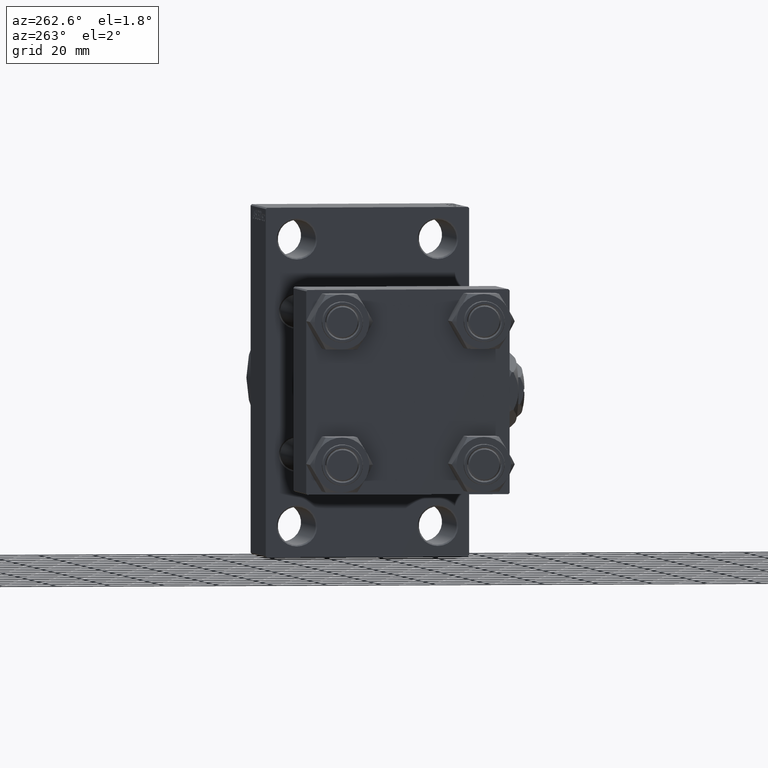
[diagram: clean part render]
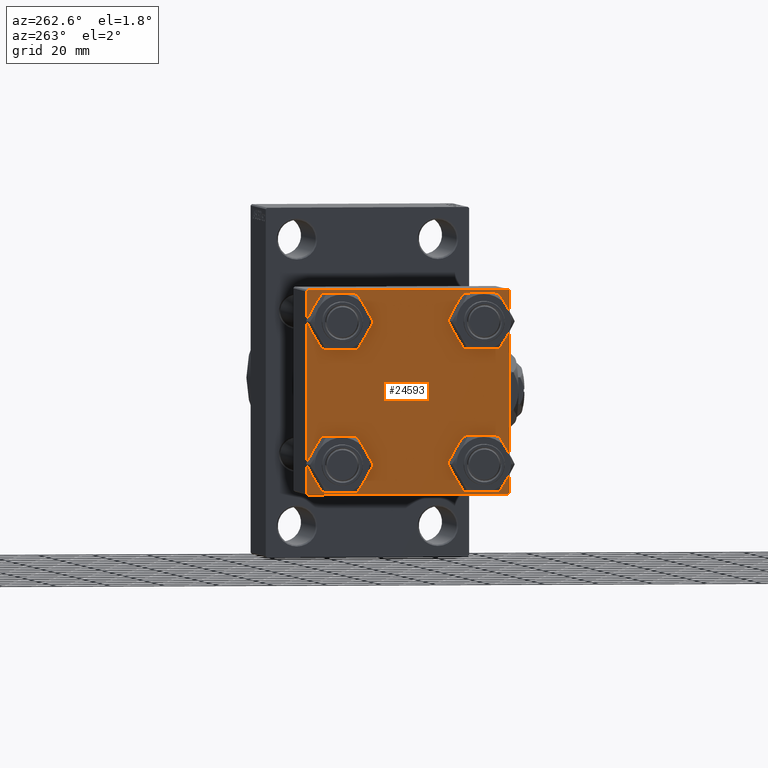
[diagram: same view with one face highlighted and labeled with its STEP entity id]
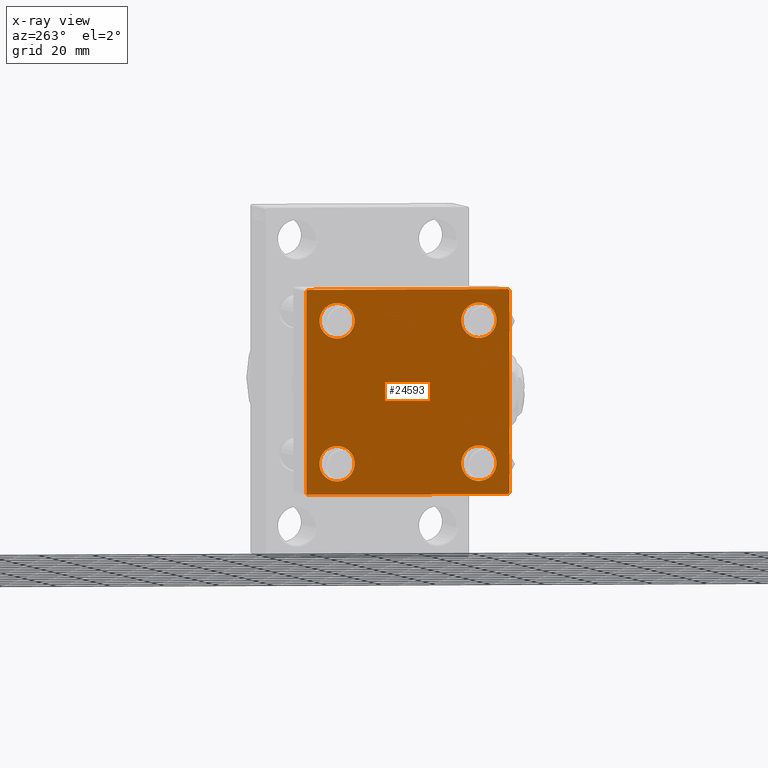
[diagram: x-ray of the same camera — body ghosted, the highlighted face saturated]
A machine part, auxiliary view. The second image highlights one B-rep face of the part: STEP entity #24593.
The next image is the same camera in x-ray: the body ghosted, the highlighted face saturated — about 0% of this face is hidden behind the body in this view.
In plain terms, the highlighted planar face has unit normal (-1, 0, 0).
Its self-contained STEP definition (entity closure, byte-faithful):
#195 = VERTEX_POINT ( 'NONE', #24095 ) ;
#1139 = CARTESIAN_POINT ( 'NONE',  ( 0.000000000000000000, 37.24999999999998579, -37.24999999999998579 ) ) ;
#1712 = EDGE_CURVE ( 'NONE', #19347, #3686, #15779, .T. ) ;
#1945 = FACE_OUTER_BOUND ( 'NONE', #43676, .T. ) ;
#3686 = VERTEX_POINT ( 'NONE', #32935 ) ;
#3839 = CARTESIAN_POINT ( 'NONE',  ( 0.000000000000000000, -26.14999999999999147, 26.15000000000000924 ) ) ;
#4061 = VECTOR ( 'NONE', #10192, 1000.000000000000114 ) ;
#4091 = DIRECTION ( 'NONE',  ( 1.000000000000000000, -0.000000000000000000, 0.000000000000000000 ) ) ;
#4492 = ORIENTED_EDGE ( 'NONE', *, *, #6974, .T. ) ;
#4689 = EDGE_CURVE ( 'NONE', #9207, #5245, #33999, .T. ) ;
#5245 = VERTEX_POINT ( 'NONE', #41557 ) ;
#5502 = VERTEX_POINT ( 'NONE', #6395 ) ;
#5781 = FACE_BOUND ( 'NONE', #16658, .T. ) ;
#6319 = CIRCLE ( 'NONE', #38259, 6.500000000000023093 ) ;
#6395 = CARTESIAN_POINT ( 'NONE',  ( 0.000000000000000000, -26.14999999999999147, -32.65000000000002700 ) ) ;
#6506 = DIRECTION ( 'NONE',  ( 1.000000000000000000, -0.000000000000000000, 0.000000000000000000 ) ) ;
#6804 = CARTESIAN_POINT ( 'NONE',  ( 0.000000000000000000, 0.000000000000000000, 0.000000000000000000 ) ) ;
#6974 = EDGE_CURVE ( 'NONE', #21932, #24993, #30191, .T. ) ;
#6993 = DIRECTION ( 'NONE',  ( 0.000000000000000000, 0.000000000000000000, 1.000000000000000000 ) ) ;
#7105 = DIRECTION ( 'NONE',  ( 0.000000000000000000, -1.000000000000000000, -9.251858538542972814E-17 ) ) ;
#7139 = VERTEX_POINT ( 'NONE', #37989 ) ;
#7254 = CARTESIAN_POINT ( 'NONE',  ( 0.000000000000000000, 26.14999999999999858, 32.65000000000002700 ) ) ;
#7270 = ORIENTED_EDGE ( 'NONE', *, *, #50020, .F. ) ;
#7287 = AXIS2_PLACEMENT_3D ( 'NONE', #8540, #16211, #28765 ) ;
#7678 = DIRECTION ( 'NONE',  ( 0.000000000000000000, 0.000000000000000000, 1.000000000000000000 ) ) ;
#7765 = ORIENTED_EDGE ( 'NONE', *, *, #1712, .T. ) ;
#8041 = VERTEX_POINT ( 'NONE', #48801 ) ;
#8276 = EDGE_CURVE ( 'NONE', #16428, #15573, #40808, .T. ) ;
#8502 = DIRECTION ( 'NONE',  ( 0.000000000000000000, 9.251858538542971581E-17, -1.000000000000000000 ) ) ;
#8540 = CARTESIAN_POINT ( 'NONE',  ( 0.000000000000000000, 26.14999999999999858, -26.15000000000000213 ) ) ;
#8599 = VERTEX_POINT ( 'NONE', #33575 ) ;
#8636 = EDGE_CURVE ( 'NONE', #5502, #195, #17131, .T. ) ;
#8875 = EDGE_CURVE ( 'NONE', #7139, #49879, #48877, .T. ) ;
#9207 = VERTEX_POINT ( 'NONE', #48320 ) ;
#9617 = DIRECTION ( 'NONE',  ( -1.000000000000000000, 0.000000000000000000, -0.000000000000000000 ) ) ;
#9834 = VECTOR ( 'NONE', #38560, 1000.000000000000000 ) ;
#10192 = DIRECTION ( 'NONE',  ( 0.000000000000000000, 0.7071067811865474617, -0.7071067811865474617 ) ) ;
#10387 = PLANE ( 'NONE',  #44441 ) ;
#10435 = EDGE_CURVE ( 'NONE', #195, #5502, #48279, .T. ) ;
#10483 = EDGE_CURVE ( 'NONE', #3686, #37830, #34545, .T. ) ;
#10554 = EDGE_LOOP ( 'NONE', ( #39668, #44193 ) ) ;
#10589 = CARTESIAN_POINT ( 'NONE',  ( 0.000000000000000000, 26.14999999999999858, -32.65000000000001990 ) ) ;
#10741 = EDGE_CURVE ( 'NONE', #7139, #5245, #49585, .T. ) ;
#11121 = AXIS2_PLACEMENT_3D ( 'NONE', #48210, #36184, #44623 ) ;
#12675 = ORIENTED_EDGE ( 'NONE', *, *, #10483, .T. ) ;
#13147 = LINE ( 'NONE', #1139, #39395 ) ;
#14028 = CARTESIAN_POINT ( 'NONE',  ( 0.000000000000000000, 37.24999999999999289, 37.24999999999999289 ) ) ;
#14539 = DIRECTION ( 'NONE',  ( 0.000000000000000000, -0.7071067811865524577, 0.7071067811865426878 ) ) ;
#15152 = EDGE_CURVE ( 'NONE', #8041, #8599, #46720, .T. ) ;
#15573 = VERTEX_POINT ( 'NONE', #10589 ) ;
#15779 = LINE ( 'NONE', #35273, #38961 ) ;
#16176 = LINE ( 'NONE', #19277, #22178 ) ;
#16211 = DIRECTION ( 'NONE',  ( 1.000000000000000000, -0.000000000000000000, 0.000000000000000000 ) ) ;
#16392 = ORIENTED_EDGE ( 'NONE', *, *, #8875, .T. ) ;
#16428 = VERTEX_POINT ( 'NONE', #50664 ) ;
#16475 = CARTESIAN_POINT ( 'NONE',  ( 0.000000000000000000, -26.14999999999999147, 26.15000000000000924 ) ) ;
#16658 = EDGE_LOOP ( 'NONE', ( #4492, #16908 ) ) ;
#16861 = ORIENTED_EDGE ( 'NONE', *, *, #15152, .T. ) ;
#16908 = ORIENTED_EDGE ( 'NONE', *, *, #39343, .T. ) ;
#17131 = CIRCLE ( 'NONE', #20403, 6.500000000000015987 ) ;
#17658 = DIRECTION ( 'NONE',  ( 1.000000000000000000, -0.000000000000000000, 0.000000000000000000 ) ) ;
#19277 = CARTESIAN_POINT ( 'NONE',  ( 0.000000000000000000, -37.50000000000000711, 37.49999999999999289 ) ) ;
#19328 = CARTESIAN_POINT ( 'NONE',  ( 0.000000000000000000, 37.49999999999999289, 37.50000000000000000 ) ) ;
#19347 = VERTEX_POINT ( 'NONE', #44010 ) ;
#19758 = EDGE_LOOP ( 'NONE', ( #48124, #16861 ) ) ;
#19854 = EDGE_LOOP ( 'NONE', ( #43885, #45594 ) ) ;
#20403 = AXIS2_PLACEMENT_3D ( 'NONE', #25372, #17658, #48936 ) ;
#20596 = ORIENTED_EDGE ( 'NONE', *, *, #4689, .T. ) ;
#21357 = CARTESIAN_POINT ( 'NONE',  ( 0.000000000000000000, 37.49999999999999289, -36.99999999999998579 ) ) ;
#21758 = EDGE_CURVE ( 'NONE', #43453, #19347, #13147, .T. ) ;
#21932 = VERTEX_POINT ( 'NONE', #7254 ) ;
#22132 = DIRECTION ( 'NONE',  ( 0.000000000000000000, 0.000000000000000000, 1.000000000000000000 ) ) ;
#22178 = VECTOR ( 'NONE', #8502, 1000.000000000000000 ) ;
#24095 = CARTESIAN_POINT ( 'NONE',  ( 0.000000000000000000, -26.14999999999999147, -19.64999999999999503 ) ) ;
#24593 = ADVANCED_FACE ( 'NONE', ( #41129, #29084, #45746, #5781, #1945 ), #10387, .T. ) ;
#24689 = DIRECTION ( 'NONE',  ( 1.000000000000000000, -0.000000000000000000, 0.000000000000000000 ) ) ;
#24819 = CARTESIAN_POINT ( 'NONE',  ( 0.000000000000000000, -37.50000000000000000, -37.00000000000003553 ) ) ;
#24993 = VERTEX_POINT ( 'NONE', #37477 ) ;
#25372 = CARTESIAN_POINT ( 'NONE',  ( 0.000000000000000000, -26.14999999999999147, -26.15000000000000924 ) ) ;
#26666 = CIRCLE ( 'NONE', #11121, 6.500000000000015987 ) ;
#28333 = DIRECTION ( 'NONE',  ( 0.000000000000000000, 0.000000000000000000, 1.000000000000000000 ) ) ;
#28513 = CIRCLE ( 'NONE', #42437, 6.500000000000023093 ) ;
#28765 = DIRECTION ( 'NONE',  ( 0.000000000000000000, 0.000000000000000000, 1.000000000000000000 ) ) ;
#29084 = FACE_BOUND ( 'NONE', #10554, .T. ) ;
#30191 = CIRCLE ( 'NONE', #30989, 6.500000000000023093 ) ;
#30989 = AXIS2_PLACEMENT_3D ( 'NONE', #36027, #35519, #28333 ) ;
#30997 = CARTESIAN_POINT ( 'NONE',  ( 0.000000000000000000, 37.49999999999999289, 37.50000000000000000 ) ) ;
#32737 = VECTOR ( 'NONE', #14539, 1000.000000000000000 ) ;
#32760 = DIRECTION ( 'NONE',  ( 1.000000000000000000, -0.000000000000000000, 0.000000000000000000 ) ) ;
#32761 = ORIENTED_EDGE ( 'NONE', *, *, #10741, .F. ) ;
#32812 = AXIS2_PLACEMENT_3D ( 'NONE', #3839, #4091, #7678 ) ;
#32935 = CARTESIAN_POINT ( 'NONE',  ( 0.000000000000000000, -37.00000000000002132, -37.50000000000000711 ) ) ;
#33575 = CARTESIAN_POINT ( 'NONE',  ( 0.000000000000000000, -26.14999999999999147, 32.65000000000003411 ) ) ;
#33633 = EDGE_CURVE ( 'NONE', #15573, #16428, #26666, .T. ) ;
#33999 = LINE ( 'NONE', #34254, #48902 ) ;
#34254 = CARTESIAN_POINT ( 'NONE',  ( -0.000000000000000000, -37.25000000000000000, 37.25000000000000000 ) ) ;
#34545 = LINE ( 'NONE', #49648, #32737 ) ;
#35273 = CARTESIAN_POINT ( 'NONE',  ( 0.000000000000000000, 37.49999999999999289, -37.50000000000000000 ) ) ;
#35519 = DIRECTION ( 'NONE',  ( 1.000000000000000000, -0.000000000000000000, 0.000000000000000000 ) ) ;
#35990 = AXIS2_PLACEMENT_3D ( 'NONE', #37343, #32760, #48388 ) ;
#36027 = CARTESIAN_POINT ( 'NONE',  ( 0.000000000000000000, 26.14999999999999858, 26.15000000000000213 ) ) ;
#36184 = DIRECTION ( 'NONE',  ( 1.000000000000000000, -0.000000000000000000, 0.000000000000000000 ) ) ;
#36915 = CARTESIAN_POINT ( 'NONE',  ( 0.000000000000000000, 37.49999999999999289, 37.00000000000000000 ) ) ;
#37242 = EDGE_CURVE ( 'NONE', #8599, #8041, #6319, .T. ) ;
#37343 = CARTESIAN_POINT ( 'NONE',  ( 0.000000000000000000, -26.14999999999999147, -26.15000000000000924 ) ) ;
#37477 = CARTESIAN_POINT ( 'NONE',  ( 0.000000000000000000, 26.14999999999999858, 19.64999999999998437 ) ) ;
#37683 = VECTOR ( 'NONE', #46882, 1000.000000000000000 ) ;
#37830 = VERTEX_POINT ( 'NONE', #24819 ) ;
#37989 = CARTESIAN_POINT ( 'NONE',  ( 0.000000000000000000, 36.99999999999999289, 37.50000000000000000 ) ) ;
#38259 = AXIS2_PLACEMENT_3D ( 'NONE', #16475, #24689, #6993 ) ;
#38560 = DIRECTION ( 'NONE',  ( 0.000000000000000000, -1.000000000000000000, -9.251858538542971581E-17 ) ) ;
#38961 = VECTOR ( 'NONE', #7105, 1000.000000000000000 ) ;
#39080 = ORIENTED_EDGE ( 'NONE', *, *, #21758, .T. ) ;
#39343 = EDGE_CURVE ( 'NONE', #24993, #21932, #28513, .T. ) ;
#39395 = VECTOR ( 'NONE', #44167, 1000.000000000000114 ) ;
#39668 = ORIENTED_EDGE ( 'NONE', *, *, #10435, .T. ) ;
#40808 = CIRCLE ( 'NONE', #7287, 6.500000000000015987 ) ;
#41129 = FACE_BOUND ( 'NONE', #19758, .T. ) ;
#41557 = CARTESIAN_POINT ( 'NONE',  ( 0.000000000000000000, -37.00000000000000711, 37.49999999999999289 ) ) ;
#42125 = CARTESIAN_POINT ( 'NONE',  ( 0.000000000000000000, 26.14999999999999858, 26.15000000000000213 ) ) ;
#42437 = AXIS2_PLACEMENT_3D ( 'NONE', #42125, #6506, #22132 ) ;
#43453 = VERTEX_POINT ( 'NONE', #21357 ) ;
#43676 = EDGE_LOOP ( 'NONE', ( #43707, #39080, #7765, #12675, #7270, #20596, #32761, #16392 ) ) ;
#43707 = ORIENTED_EDGE ( 'NONE', *, *, #49347, .T. ) ;
#43885 = ORIENTED_EDGE ( 'NONE', *, *, #8276, .T. ) ;
#44010 = CARTESIAN_POINT ( 'NONE',  ( 0.000000000000000000, 36.99999999999997868, -37.50000000000000000 ) ) ;
#44167 = DIRECTION ( 'NONE',  ( -0.000000000000000000, -0.7071067811865474617, -0.7071067811865474617 ) ) ;
#44193 = ORIENTED_EDGE ( 'NONE', *, *, #8636, .T. ) ;
#44441 = AXIS2_PLACEMENT_3D ( 'NONE', #6804, #9617, #49323 ) ;
#44623 = DIRECTION ( 'NONE',  ( 0.000000000000000000, 0.000000000000000000, 1.000000000000000000 ) ) ;
#45594 = ORIENTED_EDGE ( 'NONE', *, *, #33633, .T. ) ;
#45746 = FACE_BOUND ( 'NONE', #19854, .T. ) ;
#46720 = CIRCLE ( 'NONE', #32812, 6.500000000000023093 ) ;
#46882 = DIRECTION ( 'NONE',  ( 0.000000000000000000, 0.000000000000000000, -1.000000000000000000 ) ) ;
#48124 = ORIENTED_EDGE ( 'NONE', *, *, #37242, .T. ) ;
#48210 = CARTESIAN_POINT ( 'NONE',  ( 0.000000000000000000, 26.14999999999999858, -26.15000000000000213 ) ) ;
#48279 = CIRCLE ( 'NONE', #35990, 6.500000000000015987 ) ;
#48320 = CARTESIAN_POINT ( 'NONE',  ( 0.000000000000000000, -37.50000000000000711, 36.99999999999999289 ) ) ;
#48388 = DIRECTION ( 'NONE',  ( 0.000000000000000000, 0.000000000000000000, 1.000000000000000000 ) ) ;
#48801 = CARTESIAN_POINT ( 'NONE',  ( 0.000000000000000000, -26.14999999999999147, 19.64999999999999147 ) ) ;
#48877 = LINE ( 'NONE', #14028, #4061 ) ;
#48902 = VECTOR ( 'NONE', #49356, 1000.000000000000114 ) ;
#48936 = DIRECTION ( 'NONE',  ( 0.000000000000000000, 0.000000000000000000, 1.000000000000000000 ) ) ;
#49323 = DIRECTION ( 'NONE',  ( -0.000000000000000000, 0.000000000000000000, 1.000000000000000000 ) ) ;
#49347 = EDGE_CURVE ( 'NONE', #49879, #43453, #50465, .T. ) ;
#49356 = DIRECTION ( 'NONE',  ( -0.000000000000000000, 0.7071067811865474617, 0.7071067811865474617 ) ) ;
#49585 = LINE ( 'NONE', #19328, #9834 ) ;
#49648 = CARTESIAN_POINT ( 'NONE',  ( 0.000000000000000000, -37.24999999999975842, -37.25000000000027001 ) ) ;
#49879 = VERTEX_POINT ( 'NONE', #36915 ) ;
#50020 = EDGE_CURVE ( 'NONE', #9207, #37830, #16176, .T. ) ;
#50465 = LINE ( 'NONE', #30997, #37683 ) ;
#50664 = CARTESIAN_POINT ( 'NONE',  ( 0.000000000000000000, 26.14999999999999858, -19.64999999999998792 ) ) ;